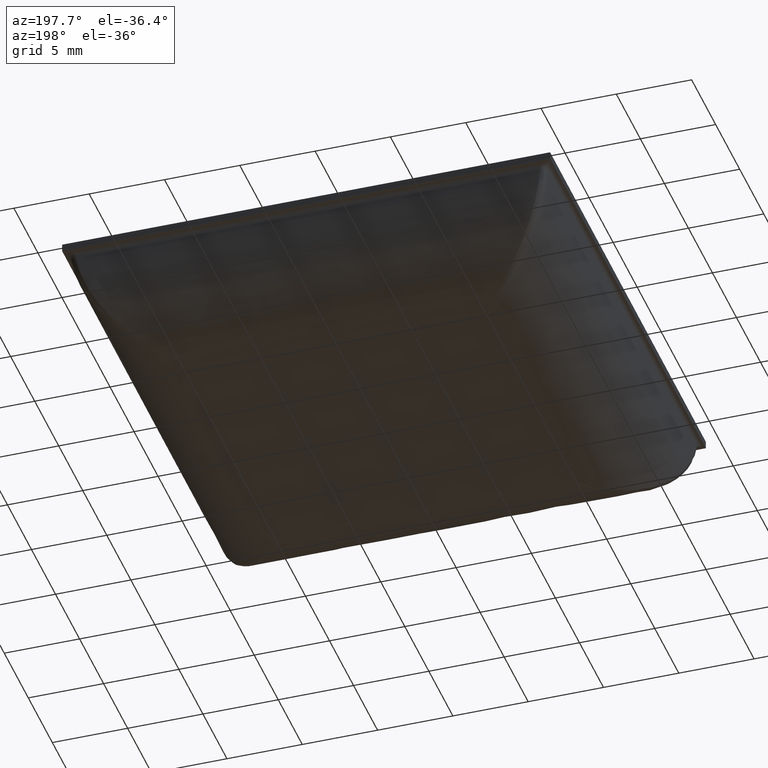
[diagram: clean part render]
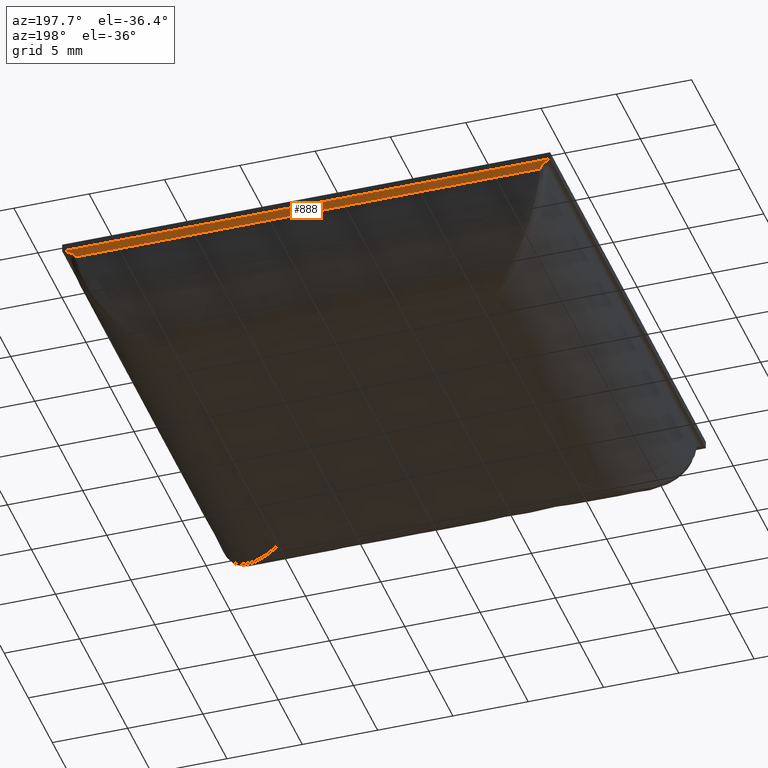
[diagram: same view with one face highlighted and labeled with its STEP entity id]
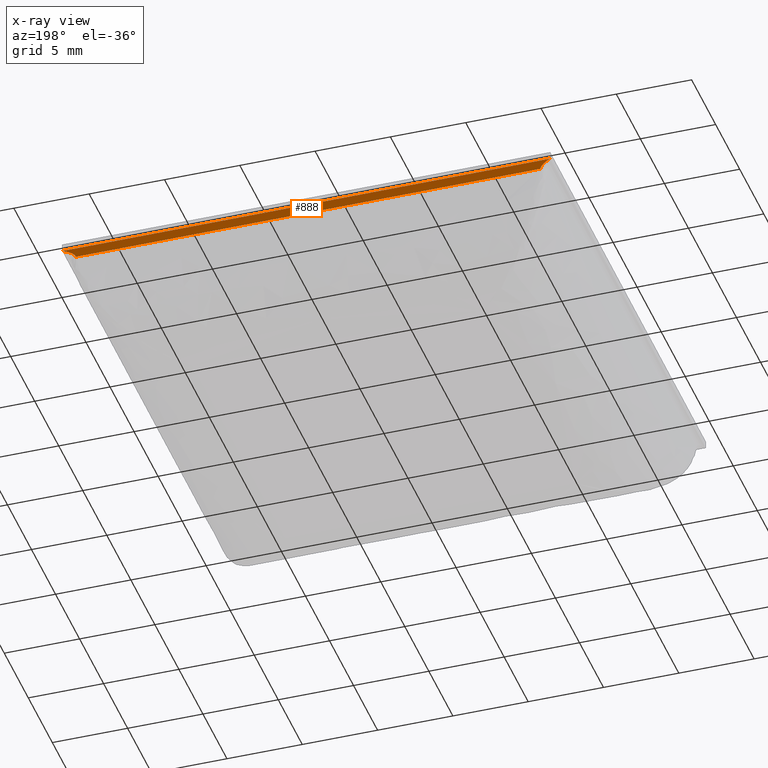
[diagram: x-ray of the same camera — body ghosted, the highlighted face saturated]
A machine part, auxiliary view. The second image highlights one B-rep face of the part: STEP entity #888.
The next image is the same camera in x-ray: the body ghosted, the highlighted face saturated — about 0% of this face is hidden behind the body in this view.
In plain terms, the highlighted face is a freeform B-spline surface patch.
Its self-contained STEP definition (entity closure, byte-faithful):
#114=CARTESIAN_POINT('',(15.417305255613901,15.815050445656150,5.542616548341090));
#115=VERTEX_POINT('',#114);
#129=CARTESIAN_POINT('',(16.187204364305050,16.199999999999999,5.899999999999889));
#130=VERTEX_POINT('',#129);
#131=CARTESIAN_POINT('',(16.187204364305050,16.199999999999999,5.899999999999889));
#132=CARTESIAN_POINT('',(15.491145844634138,15.851970740166312,5.888861160291732));
#133=CARTESIAN_POINT('',(15.417305255613901,15.815050445656150,5.542616548341090));
#141=(BOUNDED_CURVE()B_SPLINE_CURVE(2,(#131,#132,#133),.UNSPECIFIED.,.F.,.U.)CURVE()GEOMETRIC_REPRESENTATION_ITEM()QUASI_UNIFORM_CURVE()RATIONAL_B_SPLINE_CURVE((1.0,0.754249325788943,1.0))REPRESENTATION_ITEM(''));
#142=EDGE_CURVE('',#130,#115,#141,.T.);
#724=CARTESIAN_POINT('',(-16.187204364301952,16.199999999999999,5.899999999999889));
#725=VERTEX_POINT('',#724);
#735=CARTESIAN_POINT('',(-15.417305255613901,15.815050445656150,5.542616548341090));
#736=VERTEX_POINT('',#735);
#737=CARTESIAN_POINT('',(-15.417305255613901,15.815050445656150,5.542616548341090));
#738=CARTESIAN_POINT('',(-15.491145844633900,15.851970740166200,5.888861160290638));
#739=CARTESIAN_POINT('',(-16.187204364301952,16.199999999999999,5.899999999999889));
#747=(BOUNDED_CURVE()B_SPLINE_CURVE(2,(#737,#738,#739),.UNSPECIFIED.,.F.,.U.)CURVE()GEOMETRIC_REPRESENTATION_ITEM()QUASI_UNIFORM_CURVE()RATIONAL_B_SPLINE_CURVE((1.0,0.754249325789958,1.0))REPRESENTATION_ITEM(''));
#748=EDGE_CURVE('',#736,#725,#747,.T.);
#860=CARTESIAN_POINT('',(16.996564582520229,16.217451004111279,5.900177621263941));
#861=CARTESIAN_POINT('',(-17.016798587972509,16.217451004111279,5.900177621263941));
#862=CARTESIAN_POINT('',(16.996564582520229,15.831201656132635,5.904673258282761));
#863=CARTESIAN_POINT('',(-17.016798587972502,15.831201656132635,5.904673258282761));
#864=CARTESIAN_POINT('',(16.996564582520229,15.813228849888290,5.518816098440100));
#865=CARTESIAN_POINT('',(-17.016798587972509,15.813228849888290,5.518816098440100));
#873=(BOUNDED_SURFACE()B_SPLINE_SURFACE(1,2,((#860,#862,#864),(#861,#863,#865)),.UNSPECIFIED.,.F.,.F.,.U.)B_SPLINE_SURFACE_WITH_KNOTS((2,2),(3,3),(0.0,34.013363170492731),(0.0,1.0),.UNSPECIFIED.)GEOMETRIC_REPRESENTATION_ITEM()RATIONAL_B_SPLINE_SURFACE(((1.0,0.719339800338652,1.0),(1.0,0.719339800338652,1.0)))REPRESENTATION_ITEM('')SURFACE());
#874=CARTESIAN_POINT('',(-15.417305255613901,15.815050445656150,5.542616548341090));
#875=CARTESIAN_POINT('',(15.417305255613901,15.815050445656150,5.542616548341090));
#876=QUASI_UNIFORM_CURVE('',1,(#874,#875),.UNSPECIFIED.,.F.,.U.);
#877=EDGE_CURVE('',#736,#115,#876,.T.);
#878=ORIENTED_EDGE('',*,*,#877,.F.);
#879=ORIENTED_EDGE('',*,*,#748,.T.);
#880=CARTESIAN_POINT('',(-16.187204364301952,16.199999999999999,5.899999999999889));
#881=CARTESIAN_POINT('',(16.187204364305050,16.199999999999999,5.899999999999889));
#882=QUASI_UNIFORM_CURVE('',1,(#880,#881),.UNSPECIFIED.,.F.,.U.);
#883=EDGE_CURVE('',#725,#130,#882,.T.);
#884=ORIENTED_EDGE('',*,*,#883,.T.);
#885=ORIENTED_EDGE('',*,*,#142,.T.);
#886=EDGE_LOOP('',(#878,#879,#884,#885));
#887=FACE_OUTER_BOUND('',#886,.T.);
#888=ADVANCED_FACE('',(#887),#873,.F.);